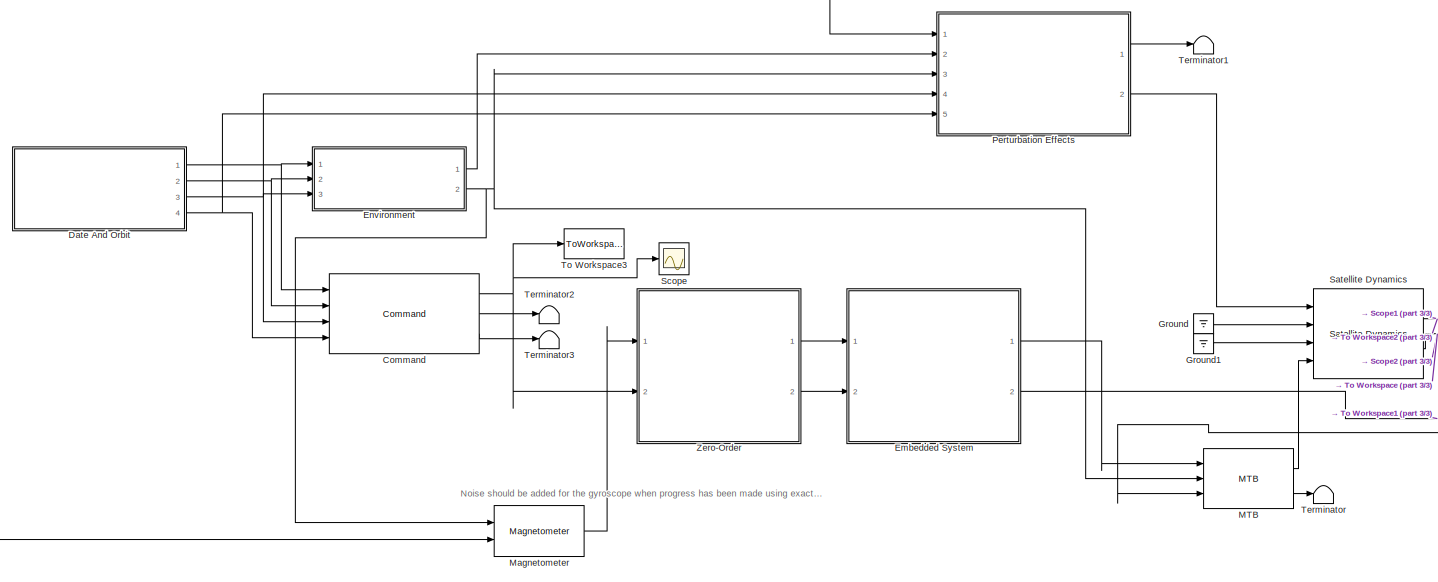
[diagram: root canvas - part 1/3, center side, full height]
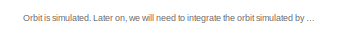
[diagram: root canvas - part 2/3, middle left region]
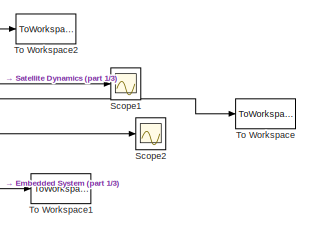
[diagram: root canvas - part 3/3, middle right region]
MODEL slx_8ec6b8305c51
KIND model
BLOCK [Reference] Command  REF=Command/Command
  Ports = [4, 3]
  SourceBlock = Command/Command
  SourceType = SubSystem
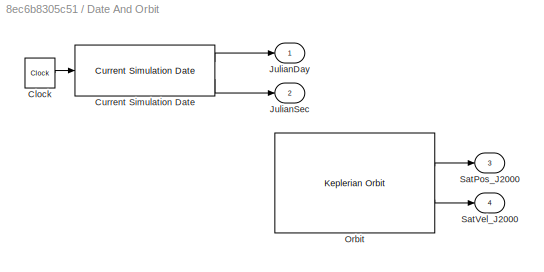
BLOCK [SubSystem] Date And Orbit
  FunctionWithSeparateData = off
  MaskHideContents = off
  MinAlgLoopOccurrences = off
  Opaque = off
  Ports = [0, 4]
  PropExecContextOutsideSubsystem = off
  RTWSystemCode = Auto
  RequestExecContextInheritance = off
BLOCK [Clock] Date And Orbit/Clock
BLOCK [Reference] Date And Orbit/Current Simulation Date  REF=Date/Current Simulation Date
  Ports = [1, 2]
  SourceBlock = Date/Current Simulation Date
  SourceType = SubSystem
BLOCK [Outport] Date And Orbit/JulianDay
  IconDisplay = Port number
BLOCK [Outport] Date And Orbit/JulianSec
  IconDisplay = Port number
  Port = 2
BLOCK [Reference] Date And Orbit/Orbit  REF=KepOrbit/Keplerian Orbit
  Ports = [0, 2]
  SourceBlock = KepOrbit/Keplerian Orbit
  SourceType = SubSystem
BLOCK [Outport] Date And Orbit/SatPos_J2000
  IconDisplay = Port number
  Port = 3
BLOCK [Outport] Date And Orbit/SatVel_J2000
  IconDisplay = Port number
  Port = 4
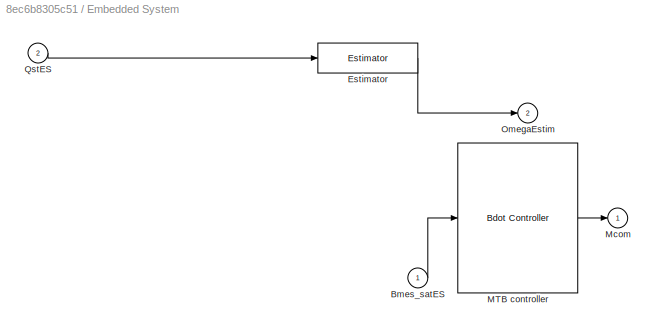
BLOCK [SubSystem] Embedded System
  FunctionWithSeparateData = off
  MaskHideContents = off
  MinAlgLoopOccurrences = off
  Opaque = off
  Ports = [2, 2]
  PropExecContextOutsideSubsystem = off
  RTWSystemCode = Auto
  RequestExecContextInheritance = off
BLOCK [Inport] Embedded System/Bmes_satES
  IconDisplay = Port number
BLOCK [Reference] Embedded System/Estimator  REF=Estimator/Estimator
  Ports = [1, 1]
  SourceBlock = Estimator/Estimator
  SourceType = SubSystem
BLOCK [Reference] Embedded System/MTB controller  REF=BdotController/Bdot Controller
  Ports = [1, 1]
  SourceBlock = BdotController/Bdot Controller
  SourceType = SubSystem
BLOCK [Outport] Embedded System/Mcom
  IconDisplay = Port number
BLOCK [Outport] Embedded System/OmegaEstim
  IconDisplay = Port number
  Port = 2
BLOCK [Inport] Embedded System/QstES
  IconDisplay = Port number
  Port = 2
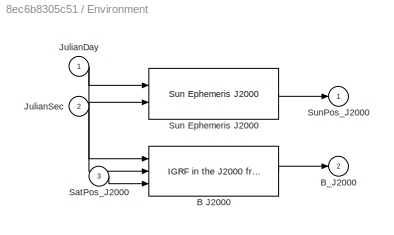
BLOCK [SubSystem] Environment
  FunctionWithSeparateData = off
  MaskHideContents = off
  MinAlgLoopOccurrences = off
  Opaque = off
  Ports = [3, 2]
  PropExecContextOutsideSubsystem = off
  RTWSystemCode = Auto
  RequestExecContextInheritance = off
BLOCK [Reference] Environment/B J2000  REF=IGRF/IGRF in the J2000 frame
  Ports = [3, 1]
  SourceBlock = IGRF/IGRF in the J2000 frame
  SourceType = SubSystem
BLOCK [Outport] Environment/B_J2000
  IconDisplay = Port number
  Port = 2
BLOCK [Inport] Environment/JulianDay
  IconDisplay = Port number
BLOCK [Inport] Environment/JulianSec
  IconDisplay = Port number
  Port = 2
BLOCK [Inport] Environment/SatPos_J2000
  IconDisplay = Port number
  Port = 3
BLOCK [Reference] Environment/Sun Ephemeris J2000  REF=SunEphemeris_MathWorks/Sun Ephemeris J2000
  Ports = [2, 1]
  SourceBlock = SunEphemeris_MathWorks/Sun Ephemeris J2000
  SourceType = SubSystem
BLOCK [Outport] Environment/SunPos_J2000
  IconDisplay = Port number
BLOCK [Ground] Ground
BLOCK [Ground] Ground1
BLOCK [Reference] MTB  REF=MTB/MTB
  Ports = [3, 2]
  SourceBlock = MTB/MTB
  SourceType = SubSystem
BLOCK [Reference] Magnetometer  REF=Magnetometer/Magnetometer
  Ports = [2, 1]
  SourceBlock = Magnetometer/Magnetometer
  SourceType = SubSystem
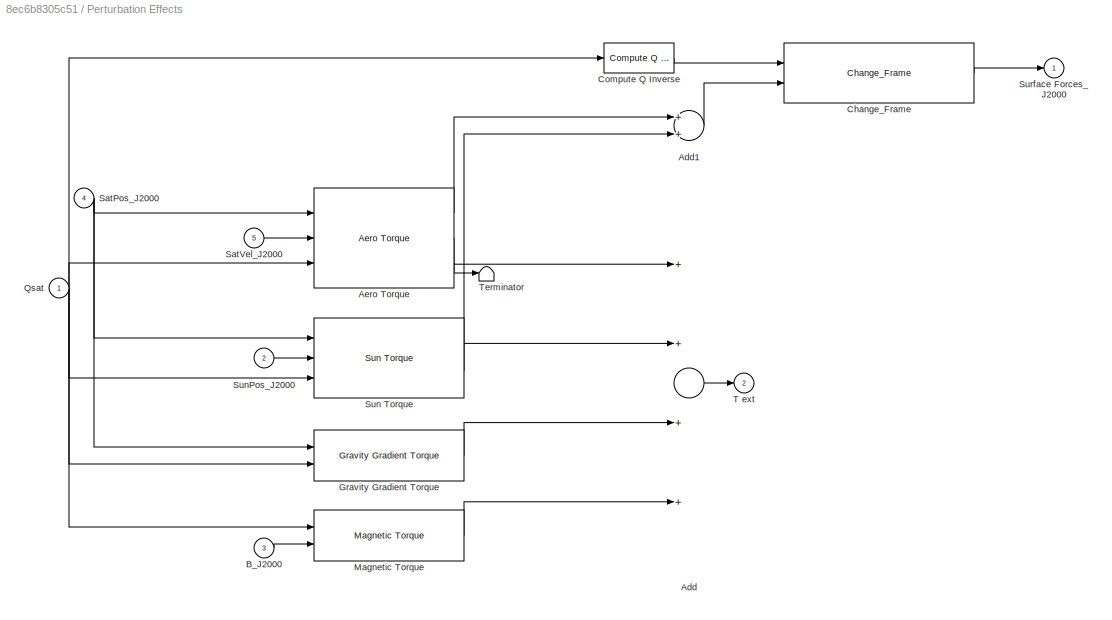
BLOCK [SubSystem] Perturbation Effects
  FunctionWithSeparateData = off
  MaskHideContents = off
  MinAlgLoopOccurrences = off
  Opaque = off
  Ports = [5, 2]
  PropExecContextOutsideSubsystem = off
  RTWSystemCode = Auto
  RequestExecContextInheritance = off
BLOCK [Sum] Perturbation Effects/Add
  InputSameDT = off
  Inputs = ++++
  OutDataTypeStr = Inherit: Inherit via internal rule
  Ports = [4, 1]
  SaturateOnIntegerOverflow = off
BLOCK [Sum] Perturbation Effects/Add1
  InputSameDT = off
  OutDataTypeStr = Inherit: Inherit via internal rule
  Ports = [2, 1]
  SaturateOnIntegerOverflow = off
BLOCK [Reference] Perturbation Effects/Aero Torque  REF=AeroTorqueA/Aero Torque
  Ports = [3, 3]
  SourceBlock = AeroTorqueA/Aero Torque
  SourceType = SubSystem
BLOCK [Inport] Perturbation Effects/B_J2000
  IconDisplay = Port number
  Port = 3
BLOCK [Reference] Perturbation Effects/Change_Frame  REF=ChangeFrame/Change_Frame
  Ports = [2, 1]
  SourceBlock = ChangeFrame/Change_Frame
  SourceType = SubSystem
BLOCK [Reference] Perturbation Effects/Compute Q Inverse  REF=Qinverse/Compute Q Inverse
  Ports = [1, 1]
  SourceBlock = Qinverse/Compute Q Inverse
  SourceType = SubSystem
BLOCK [Reference] Perturbation Effects/Gravity Gradient Torque  REF=GravGradTorque/Gravity Gradient Torque
  Ports = [2, 1]
  SourceBlock = GravGradTorque/Gravity Gradient Torque
  SourceType = SubSystem
BLOCK [Reference] Perturbation Effects/Magnetic Torque  REF=MagnTorque/Magnetic Torque
  Ports = [2, 1]
  SourceBlock = MagnTorque/Magnetic Torque
  SourceType = SubSystem
BLOCK [Inport] Perturbation Effects/Qsat
  IconDisplay = Port number
BLOCK [Inport] Perturbation Effects/SatPos_J2000
  IconDisplay = Port number
  Port = 4
BLOCK [Inport] Perturbation Effects/SatVel_J2000
  IconDisplay = Port number
  Port = 5
BLOCK [Reference] Perturbation Effects/Sun Torque  REF=SunTorqueA/Sun Torque
  Ports = [3, 2]
  SourceBlock = SunTorqueA/Sun Torque
  SourceType = SubSystem
BLOCK [Inport] Perturbation Effects/SunPos_J2000
  IconDisplay = Port number
  Port = 2
BLOCK [Outport] Perturbation Effects/Surface Forces_J2000
  IconDisplay = Port number
BLOCK [Outport] Perturbation Effects/T ext
  IconDisplay = Port number
  Port = 2
BLOCK [Terminator] Perturbation Effects/Terminator
BLOCK [Reference] Satellite Dynamics  REF=SatDyn/Satellite Dynamics
  Ports = [4, 2]
  SourceBlock = SatDyn/Satellite Dynamics
  SourceType = SubSystem
BLOCK [Scope] Scope
  DataFormat = StructureWithTime
  Decimation = 1
  Floating = off
  Grid = on
  LimitDataPoints = off
  MaxDataPoints = 5000
  NumInputPorts = 1
  Ports = [1]
  SampleInput = off
  SampleTime = -1
  SaveName = ScopeData
  SaveToWorkspace = off
  ShowLegends = off
  TickLabels = OneTimeTick
  TimeRange = auto
  YMax = 10
  YMin = -10
  ZoomMode = on
BLOCK [Scope] Scope1
  DataFormat = StructureWithTime
  Decimation = 1
  Floating = off
  Grid = on
  LimitDataPoints = off
  MaxDataPoints = 5000
  NumInputPorts = 1
  Ports = [1]
  SampleInput = off
  SampleTime = -1
  SaveName = ScopeData1
  SaveToWorkspace = off
  ShowLegends = off
  TickLabels = OneTimeTick
  TimeRange = auto
  YMax = 1.22286
  YMin = -1.0057
  ZoomMode = on
BLOCK [Scope] Scope2
  DataFormat = StructureWithTime
  Decimation = 1
  Floating = off
  Grid = on
  LimitDataPoints = off
  MaxDataPoints = 5000
  NumInputPorts = 1
  Ports = [1]
  SampleInput = off
  SampleTime = -1
  SaveName = ScopeData2
  SaveToWorkspace = off
  ShowLegends = off
  TickLabels = OneTimeTick
  TimeRange = auto
  YMax = 0.61002
  YMin = -0.61548
  ZoomMode = on
BLOCK [Terminator] Terminator
BLOCK [Terminator] Terminator1
BLOCK [Terminator] Terminator2
BLOCK [Terminator] Terminator3
BLOCK [ToWorkspace] To Workspace
  FixptAsFi = on
  MaxDataPoints = inf
  Ports = [1]
  SampleTime = -1
  SaveFormat = Timeseries
  VariableName = OmegaSat
BLOCK [ToWorkspace] To Workspace1
  FixptAsFi = on
  MaxDataPoints = inf
  Ports = [1]
  SampleTime = -1
  SaveFormat = Timeseries
  VariableName = OmegaEstim
BLOCK [ToWorkspace] To Workspace2
  FixptAsFi = on
  MaxDataPoints = inf
  Ports = [1]
  SampleTime = -1
  SaveFormat = Timeseries
  VariableName = Qsat
BLOCK [ToWorkspace] To Workspace3
  FixptAsFi = on
  MaxDataPoints = inf
  Ports = [1]
  SampleTime = -1
  SaveFormat = Timeseries
  VariableName = Qcom
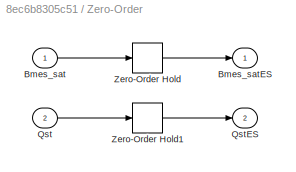
BLOCK [SubSystem] Zero-Order
  FunctionWithSeparateData = off
  MaskHideContents = off
  MinAlgLoopOccurrences = off
  Opaque = off
  Ports = [2, 2]
  PropExecContextOutsideSubsystem = off
  RTWSystemCode = Auto
  RequestExecContextInheritance = off
BLOCK [Inport] Zero-Order/Bmes_sat
  IconDisplay = Port number
BLOCK [Outport] Zero-Order/Bmes_satES
  IconDisplay = Port number
BLOCK [Inport] Zero-Order/Qst
  IconDisplay = Port number
  Port = 2
BLOCK [Outport] Zero-Order/QstES
  IconDisplay = Port number
  Port = 2
BLOCK [ZeroOrderHold] Zero-Order/Zero-Order Hold
  SampleTime = 1/ConfParam.confES.frequency
BLOCK [ZeroOrderHold] Zero-Order/Zero-Order Hold1
  SampleTime = 1/ConfParam.confES.frequency
ANNOTATION (root): Noise should be added for the gyroscope when progress has been made using exact attitude measurements.
ANNOTATION (root): Orbit is simulated. Later on, we will need to integrate the orbit simulated by the Mission Analysis team.
NET Command:1 -> Scope:1, To Workspace3:1, Zero-Order:2
LINE Command:2 -> Terminator2:1
LINE Command:3 -> Terminator3:1
LINE Date And Orbit/Clock:1 -> Date And Orbit/Current Simulation Date:1
LINE Date And Orbit/Current Simulation Date:1 -> Date And Orbit/JulianDay:1
LINE Date And Orbit/Current Simulation Date:2 -> Date And Orbit/JulianSec:1
LINE Date And Orbit/Orbit:1 -> Date And Orbit/SatPos_J2000:1
LINE Date And Orbit/Orbit:2 -> Date And Orbit/SatVel_J2000:1
NET Date And Orbit:1 -> Command:1, Environment:1
NET Date And Orbit:2 -> Command:2, Environment:2
NET Date And Orbit:3 -> Command:3, Environment:3, Perturbation Effects:4
NET Date And Orbit:4 -> Command:4, Perturbation Effects:5
LINE Embedded System/Bmes_satES:1 -> Embedded System/MTB controller:1
LINE Embedded System/Estimator:1 -> Embedded System/OmegaEstim:1
LINE Embedded System/MTB controller:1 -> Embedded System/Mcom:1
LINE Embedded System/QstES:1 -> Embedded System/Estimator:1
LINE Embedded System:1 -> MTB:1
LINE Embedded System:2 -> To Workspace1:1
LINE Environment/B J2000:1 -> Environment/B_J2000:1
NET Environment/JulianDay:1 -> Environment/B J2000:1, Environment/Sun Ephemeris J2000:1
NET Environment/JulianSec:1 -> Environment/B J2000:2, Environment/Sun Ephemeris J2000:2
LINE Environment/SatPos_J2000:1 -> Environment/B J2000:3
LINE Environment/Sun Ephemeris J2000:1 -> Environment/SunPos_J2000:1
LINE Environment:1 -> Perturbation Effects:2
NET Environment:2 -> MTB:2, Magnetometer:1, Perturbation Effects:3
LINE Ground1:1 -> Satellite Dynamics:3
LINE Ground:1 -> Satellite Dynamics:2
LINE MTB:1 -> Satellite Dynamics:4
LINE MTB:2 -> Terminator:1
LINE Magnetometer:1 -> Zero-Order:1
LINE Perturbation Effects/Add1:1 -> Perturbation Effects/Change_Frame:2
LINE Perturbation Effects/Add:1 -> Perturbation Effects/T ext:1
LINE Perturbation Effects/Aero Torque:1 -> Perturbation Effects/Add1:1
LINE Perturbation Effects/Aero Torque:2 -> Perturbation Effects/Add:1
LINE Perturbation Effects/Aero Torque:3 -> Perturbation Effects/Terminator:1
LINE Perturbation Effects/B_J2000:1 -> Perturbation Effects/Magnetic Torque:2
LINE Perturbation Effects/Change_Frame:1 -> Perturbation Effects/Surface Forces_J2000:1
LINE Perturbation Effects/Compute Q Inverse:1 -> Perturbation Effects/Change_Frame:1
LINE Perturbation Effects/Gravity Gradient Torque:1 -> Perturbation Effects/Add:3
LINE Perturbation Effects/Magnetic Torque:1 -> Perturbation Effects/Add:4
NET Perturbation Effects/Qsat:1 -> Perturbation Effects/Aero Torque:3, Perturbation Effects/Compute Q Inverse:1, Perturbation Effects/Gravity Gradient Torque:2, Perturbation Effects/Magnetic Torque:1, Perturbation Effects/Sun Torque:3
NET Perturbation Effects/SatPos_J2000:1 -> Perturbation Effects/Aero Torque:1, Perturbation Effects/Gravity Gradient Torque:1, Perturbation Effects/Sun Torque:1
LINE Perturbation Effects/SatVel_J2000:1 -> Perturbation Effects/Aero Torque:2
LINE Perturbation Effects/Sun Torque:1 -> Perturbation Effects/Add1:2
LINE Perturbation Effects/Sun Torque:2 -> Perturbation Effects/Add:2
LINE Perturbation Effects/SunPos_J2000:1 -> Perturbation Effects/Sun Torque:2
LINE Perturbation Effects:1 -> Terminator1:1
LINE Perturbation Effects:2 -> Satellite Dynamics:1
NET Satellite Dynamics:1 -> MTB:3, Magnetometer:2, Perturbation Effects:1, Scope1:1, To Workspace2:1
NET Satellite Dynamics:2 -> Scope2:1, To Workspace:1
LINE Zero-Order/Bmes_sat:1 -> Zero-Order/Zero-Order Hold:1
LINE Zero-Order/Qst:1 -> Zero-Order/Zero-Order Hold1:1
LINE Zero-Order/Zero-Order Hold1:1 -> Zero-Order/QstES:1
LINE Zero-Order/Zero-Order Hold:1 -> Zero-Order/Bmes_satES:1
LINE Zero-Order:1 -> Embedded System:1
LINE Zero-Order:2 -> Embedded System:2
note: NET lines group one-source signal fan-out (src -> all destinations, sorted); 1:1 wires keep LINE
